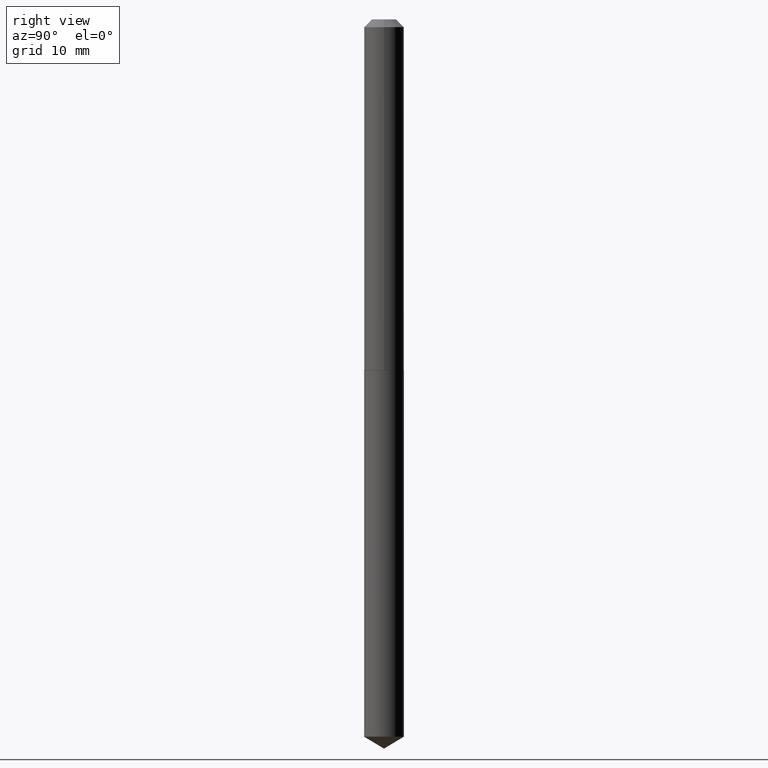
[diagram: clean part render]
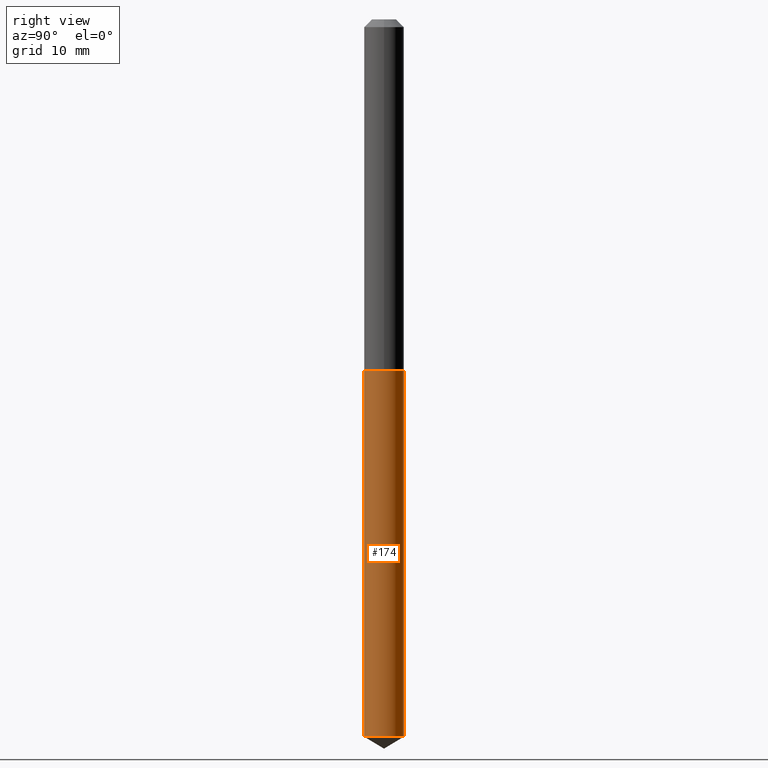
[diagram: same view with one face highlighted and labeled with its STEP entity id]
A machine part, right view. The second image highlights one B-rep face of the part: STEP entity #174.
In plain terms, the highlighted cylindrical surface (edge-blend (fillet) strip) has radius 2.0498 mm, axis along (-0, 0, 1).
Its self-contained STEP definition (entity closure, byte-faithful):
#4 = CARTESIAN_POINT ( 'NONE',  ( 3.475744814230933928E-29, -4.962442426897761682E-15, -1.421299999999999564 ) ) ;
#18 = CARTESIAN_POINT ( 'NONE',  ( 3.475744814230933928E-29, -4.962442426897761682E-15, -1.421299999999999564 ) ) ;
#21 = ORIENTED_EDGE ( 'NONE', *, *, #317, .F. ) ;
#33 = VECTOR ( 'NONE', #89, 39.37007874015748143 ) ;
#51 = VERTEX_POINT ( 'NONE', #259 ) ;
#70 = DIRECTION ( 'NONE',  ( -2.445410870755612357E-29, 3.491564305675704227E-15, 1.000000000000000000 ) ) ;
#89 = DIRECTION ( 'NONE',  ( -2.445410870755612357E-29, 3.491564305675704227E-15, 1.000000000000000000 ) ) ;
#92 = AXIS2_PLACEMENT_3D ( 'NONE', #4, #282, #311 ) ;
#97 = ORIENTED_EDGE ( 'NONE', *, *, #275, .T. ) ;
#105 = LINE ( 'NONE', #220, #367 ) ;
#124 = DIRECTION ( 'NONE',  ( -6.982962677686266711E-15, -1.000000000000000000, 6.770379166454184154E-15 ) ) ;
#140 = ORIENTED_EDGE ( 'NONE', *, *, #359, .T. ) ;
#144 = VERTEX_POINT ( 'NONE', #342 ) ;
#157 = EDGE_CURVE ( 'NONE', #144, #324, #180, .T. ) ;
#174 = ADVANCED_FACE ( 'NONE', ( #305 ), #184, .T. ) ;
#180 = LINE ( 'NONE', #212, #33 ) ;
#184 = CYLINDRICAL_SURFACE ( 'NONE', #92, 0.08069999999999999396 ) ;
#188 = CARTESIAN_POINT ( 'NONE',  ( 7.102314929864133069E-29, -1.014046912139041689E-14, -2.904310548044475748 ) ) ;
#192 = DIRECTION ( 'NONE',  ( -6.982962677686266711E-15, -1.000000000000000000, 3.385189583227092077E-15 ) ) ;
#195 = CARTESIAN_POINT ( 'NONE',  ( -5.635250880892469553E-16, -0.08070000000000496221, -1.421299999999999342 ) ) ;
#212 = CARTESIAN_POINT ( 'NONE',  ( -5.635250880892469553E-16, -0.08070000000000496221, -1.421299999999999342 ) ) ;
#213 = CIRCLE ( 'NONE', #364, 0.08069999999999999396 ) ;
#220 = CARTESIAN_POINT ( 'NONE',  ( 5.734079877584354184E-16, 0.08069999999999502571, -1.421300000000000008 ) ) ;
#240 = EDGE_LOOP ( 'NONE', ( #97, #140, #21, #243 ) ) ;
#243 = ORIENTED_EDGE ( 'NONE', *, *, #157, .F. ) ;
#259 = CARTESIAN_POINT ( 'NONE',  ( 5.734079877584720018E-16, 0.08069999999999502571, -1.421300000000000008 ) ) ;
#270 = CIRCLE ( 'NONE', #326, 0.08069999999999999396 ) ;
#275 = EDGE_CURVE ( 'NONE', #144, #304, #213, .T. ) ;
#282 = DIRECTION ( 'NONE',  ( -2.445410870755612357E-29, 3.491564305675704227E-15, 1.000000000000000000 ) ) ;
#289 = DIRECTION ( 'NONE',  ( -2.445410870755612357E-29, 3.491564305675704227E-15, 1.000000000000000000 ) ) ;
#304 = VERTEX_POINT ( 'NONE', #352 ) ;
#305 = FACE_OUTER_BOUND ( 'NONE', #240, .T. ) ;
#311 = DIRECTION ( 'NONE',  ( -6.982962677686266711E-15, -1.000000000000000000, 3.385189583227092077E-15 ) ) ;
#317 = EDGE_CURVE ( 'NONE', #324, #51, #270, .T. ) ;
#324 = VERTEX_POINT ( 'NONE', #195 ) ;
#326 = AXIS2_PLACEMENT_3D ( 'NONE', #18, #70, #192 ) ;
#342 = CARTESIAN_POINT ( 'NONE',  ( -5.635250880892103719E-16, -0.08070000000001011087, -2.904310548044475304 ) ) ;
#352 = CARTESIAN_POINT ( 'NONE',  ( 5.734079877584715087E-16, 0.08069999999998982154, -2.904310548044476192 ) ) ;
#359 = EDGE_CURVE ( 'NONE', #304, #51, #105, .T. ) ;
#364 = AXIS2_PLACEMENT_3D ( 'NONE', #188, #366, #124 ) ;
#366 = DIRECTION ( 'NONE',  ( -2.445410870755612357E-29, 3.491564305675704227E-15, 1.000000000000000000 ) ) ;
#367 = VECTOR ( 'NONE', #289, 39.37007874015748143 ) ;